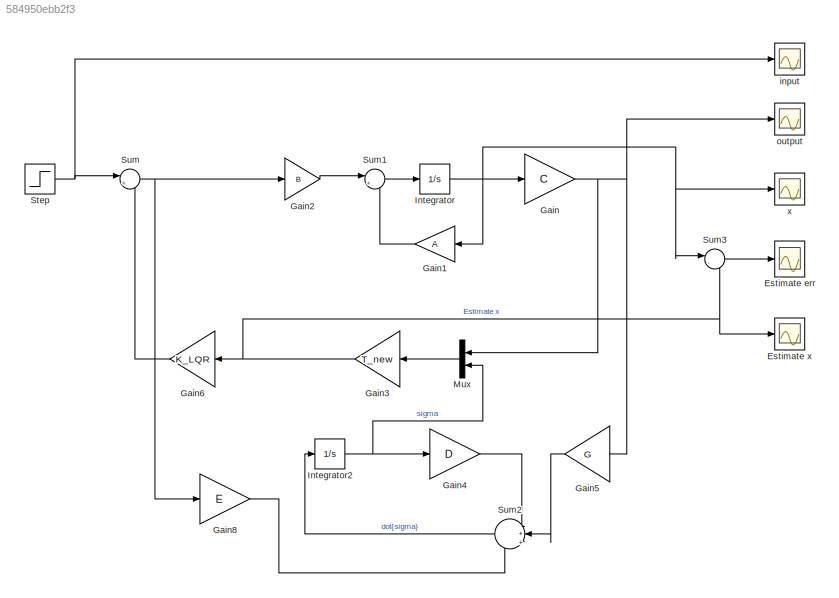
MODEL slx_584950ebb2f3
KIND model
CONFIG AbsTol = auto
CONFIG EnableMultiTasking = off
CONFIG FixedStep = auto
CONFIG MaxStep = auto
CONFIG MinStep = auto
CONFIG RelTol = 1e-3
CONFIG SampleTimeConstraint = Unconstrained
CONFIG SolverName = VariableStepAuto
CONFIG StartTime = 0.0
CONFIG StopTime = 50.0
BLOCK [Scope] Estimate err
  AttributesFormatString = output
  Floating = off
  NumInputPorts = 1
  ScopeSpecificationString = Simulink.scopes.TimeScopeBlockCfg('CurrentConfiguration', extmgr.ConfigurationSet(extmgr.Configuration('Core','General UI',true),extmgr.Configuration('Core','Source UI',true),extmgr.Configuration('Sources','WiredSimulink',true,'DataLoggingVariableName','ScopeData2'),extmgr.Configuration('Visuals','Time Domain',true,'SerializedDisplays',{struct('MinYLimReal','-1.35372','MaxYLimReal','3.47275','YLab...<+1490ch>
BLOCK [Scope] Estimate x
  AttributesFormatString = output
  Floating = off
  NumInputPorts = 1
  ScopeSpecificationString = Simulink.scopes.TimeScopeBlockCfg('CurrentConfiguration', extmgr.ConfigurationSet(extmgr.Configuration('Core','General UI',true),extmgr.Configuration('Core','Source UI',true),extmgr.Configuration('Sources','WiredSimulink',true,'DataLoggingVariableName','ScopeData1'),extmgr.Configuration('Visuals','Time Domain',true,'SerializedDisplays',{struct('MinYLimReal','-1.35372','MaxYLimReal','3.47275','YLab...<+1488ch>
BLOCK [Gain] Gain
  Gain = C
  Multiplication = Matrix(K*u)
BLOCK [Gain] Gain1
  Gain = A
  Multiplication = Matrix(K*u)
  NameLocation = top
BLOCK [Gain] Gain2
  Gain = B
  Multiplication = Matrix(K*u)
  Tag = B
BLOCK [Gain] Gain3
  Gain = T_new
  Multiplication = Matrix(K*u)
  NameLocation = top
BLOCK [Gain] Gain4
  Gain = D
  Multiplication = Matrix(K*u)
BLOCK [Gain] Gain5
  Gain = G
  Multiplication = Matrix(K*u)
  NameLocation = top
BLOCK [Gain] Gain6
  Gain = K_LQR
  Multiplication = Matrix(K*u)
  NameLocation = top
BLOCK [Gain] Gain8
  Gain = E
  Multiplication = Matrix(K*u)
BLOCK [Integrator] Integrator
  InitialCondition = [1 1 1 1]
BLOCK [Integrator] Integrator2
  InitialCondition = [0 0]
BLOCK [Mux] Mux
  DisplayOption = bar
  Inputs = 2
  NameLocation = top
BLOCK [Step] Step
  After = [0;0]
  Before = [0,0]
  SampleTime = 0
  Time = 0
BLOCK [Sum] Sum
  Inputs = |+-
BLOCK [Sum] Sum1
  Inputs = |++
BLOCK [Sum] Sum2
  Inputs = |+|+|+
  NameLocation = top
BLOCK [Sum] Sum3
  Inputs = |-+
BLOCK [Scope] input
  Floating = off
  NumInputPorts = 1
  ScopeSpecificationString = Simulink.scopes.TimeScopeBlockCfg('CurrentConfiguration', extmgr.ConfigurationSet(extmgr.Configuration('Core','General UI',true),extmgr.Configuration('Core','Source UI',true),extmgr.Configuration('Sources','WiredSimulink',true,'DataLoggingVariableName','ScopeData3'),extmgr.Configuration('Visuals','Time Domain',true,'SerializedDisplays',{struct('MinYLimReal','-1.00000','MaxYLimReal','1.00000','YLab...<+1374ch>
BLOCK [Scope] output
  Floating = off
  NumInputPorts = 1
  ScopeSpecificationString = Simulink.scopes.TimeScopeBlockCfg('CurrentConfiguration', extmgr.ConfigurationSet(extmgr.Configuration('Core','General UI',true),extmgr.Configuration('Core','Source UI',true),extmgr.Configuration('Sources','WiredSimulink',true,'DataLoggingVariableName','ScopeData3'),extmgr.Configuration('Visuals','Time Domain',true,'SerializedDisplays',{struct('MinYLimReal','-5.99205','MaxYLimReal','0.66944','YLab...<+1400ch>
BLOCK [Scope] x
  Floating = off
  NumInputPorts = 1
  ScopeSpecificationString = Simulink.scopes.TimeScopeBlockCfg('CurrentConfiguration', extmgr.ConfigurationSet(extmgr.Configuration('Core','General UI',true),extmgr.Configuration('Core','Source UI',true),extmgr.Configuration('Sources','WiredSimulink',true,'DataLoggingVariableName','ScopeData1'),extmgr.Configuration('Visuals','Time Domain',true,'SerializedDisplays',{struct('MinYLimReal','-0.29394','MaxYLimReal','1.1773','YLabe...<+1441ch>
LINE Gain1:1 -> Sum1:2
LINE Gain2:1 -> Sum1:1
NET Gain3:1 -> Estimate x:1, Gain6:1, Sum3:2
LINE Gain4:1 -> Sum2:1
LINE Gain5:1 -> Sum2:2
LINE Gain6:1 -> Sum:2
LINE Gain8:1 -> Sum2:3
NET Gain:1 -> Gain5:1, Mux:1, output:1
NET Integrator2:1 -> Gain4:1, Mux:2
NET Integrator:1 -> Gain1:1, Gain:1, Sum3:1, x:1
LINE Mux:1 -> Gain3:1
NET Step:1 -> Sum:1, input:1
LINE Sum1:1 -> Integrator:1
LINE Sum2:1 -> Integrator2:1
LINE Sum3:1 -> Estimate err:1
NET Sum:1 -> Gain2:1, Gain8:1
note: NET lines group one-source signal fan-out (src -> all destinations, sorted); 1:1 wires keep LINE
